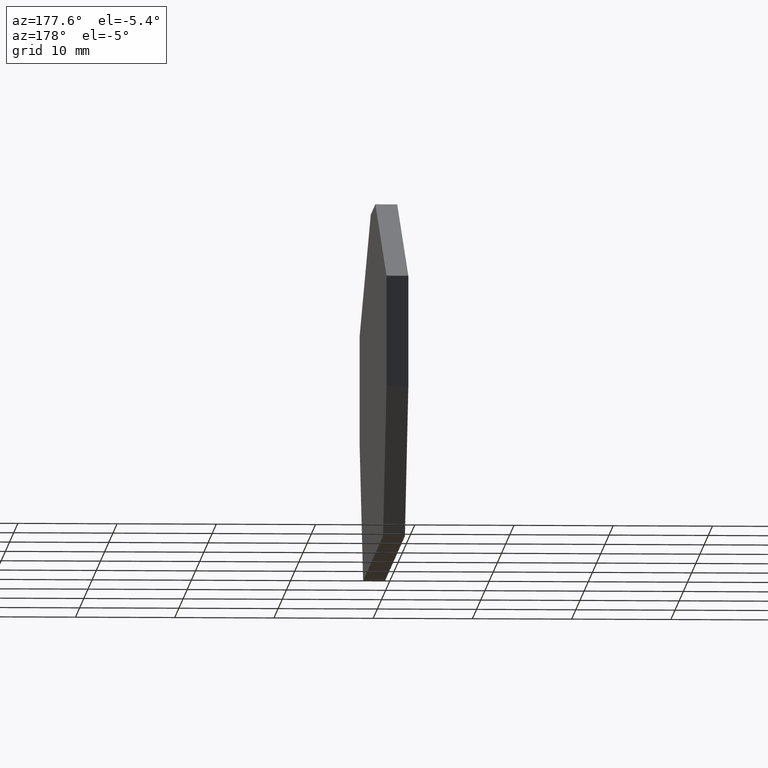
[diagram: clean part render]
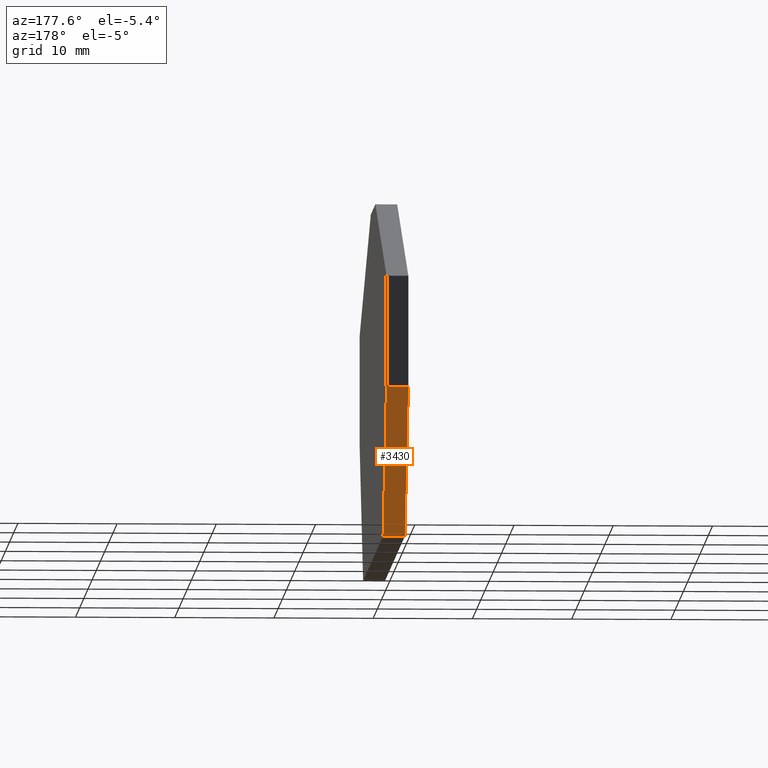
[diagram: same view with one face highlighted and labeled with its STEP entity id]
A machine part, auxiliary view. The second image highlights one B-rep face of the part: STEP entity #3430.
In plain terms, the highlighted planar face has unit normal (-0, 0.8667, -0.4988).
Its self-contained STEP definition (entity closure, byte-faithful):
#360=CARTESIAN_POINT('',(98.5321672216736,-23.8197560553673,
45.3200000000001));
#370=VERTEX_POINT('',#360);
#400=CARTESIAN_POINT('',(112.239848664921,0.,45.32));
#410=DIRECTION('',(-0.498780693240312,-0.866728227330063,
6.16173778666962E-15));
#420=VECTOR('',#410,1.);
#430=LINE('',#400,#420);
#440=CARTESIAN_POINT('',(90.2566919140678,-38.2000000000124,
45.3200000000002));
#450=VERTEX_POINT('',#440);
#460=EDGE_CURVE('',#370,#450,#430,.T.);
#1070=CARTESIAN_POINT('',(90.2566919140678,-38.2000000000124,
43.1200000000002));
#1080=VERTEX_POINT('',#1070);
#1110=CARTESIAN_POINT('',(112.239848664921,0.,43.12));
#1120=DIRECTION('',(-0.498780693240312,-0.866728227330063,
6.16173778666962E-15));
#1130=VECTOR('',#1120,1.);
#1140=LINE('',#1110,#1130);
#1150=CARTESIAN_POINT('',(98.5321672216736,-23.8197560553673,
43.1200000000001));
#1160=VERTEX_POINT('',#1150);
#1170=EDGE_CURVE('',#1160,#1080,#1140,.T.);
#1640=CARTESIAN_POINT('',(90.2566919140678,-38.2000000000127,0.));
#1650=DIRECTION('',(-1.99324924233245E-28,7.105427357601E-15,1.));
#1660=VECTOR('',#1650,1.);
#1670=LINE('',#1640,#1660);
#1680=EDGE_CURVE('',#1080,#450,#1670,.T.);
#2970=CARTESIAN_POINT('',(98.5321672216736,-23.8197560553676,0.));
#2980=DIRECTION('',(-1.99081215031897E-28,7.105427357601E-15,1.));
#2990=VECTOR('',#2980,1.);
#3000=LINE('',#2970,#2990);
#3010=EDGE_CURVE('',#1160,#370,#3000,.T.);
#3320=CARTESIAN_POINT('',(91.1220099182865,-36.6963420797329,
45.3200000000002));
#3330=DIRECTION('',(0.866728227330063,-0.498780693240312,
3.54404998319308E-15));
#3340=DIRECTION('',(0.498780693240312,0.866728227330063,
-6.15847445807595E-15));
#3350=AXIS2_PLACEMENT_3D('',#3320,#3330,#3340);
#3360=PLANE('',#3350);
#3370=ORIENTED_EDGE('',*,*,#460,.T.);
#3380=ORIENTED_EDGE('',*,*,#3010,.T.);
#3390=ORIENTED_EDGE('',*,*,#1170,.F.);
#3400=ORIENTED_EDGE('',*,*,#1680,.F.);
#3410=EDGE_LOOP('',(#3400,#3390,#3380,#3370));
#3420=FACE_OUTER_BOUND('',#3410,.T.);
#3430=ADVANCED_FACE('',(#3420),#3360,.T.);